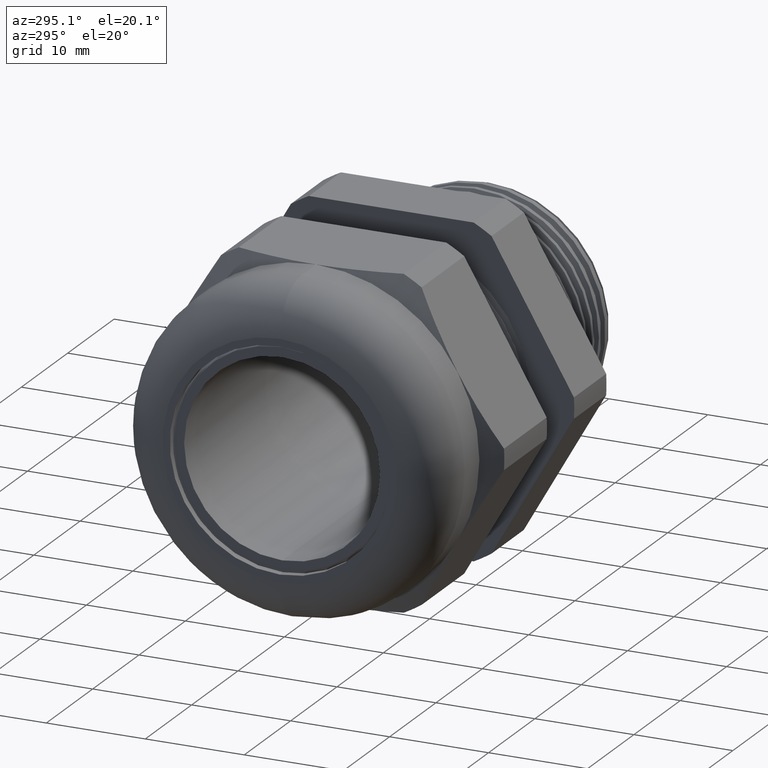
[diagram: clean part render]
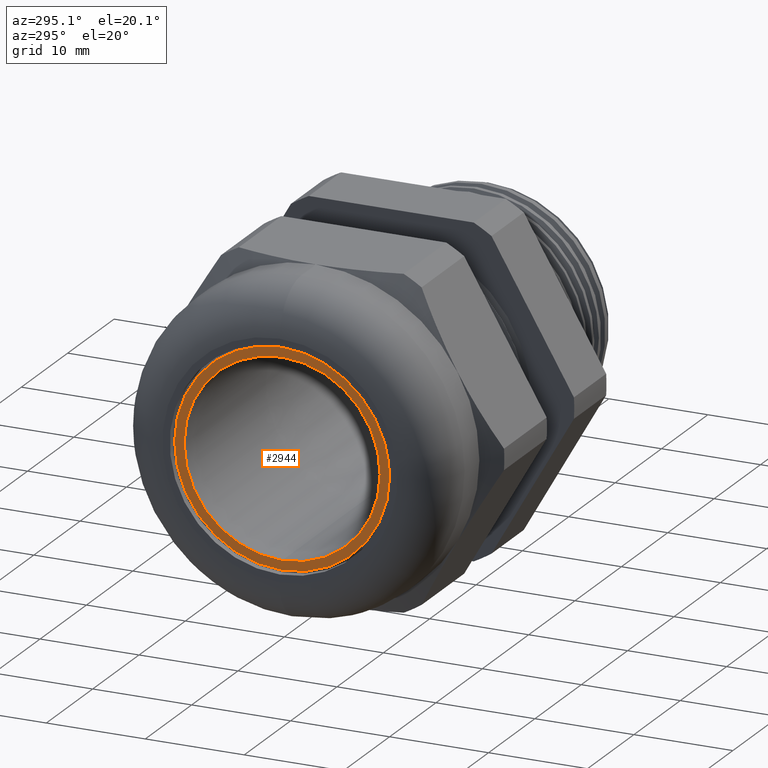
[diagram: same view with one face highlighted and labeled with its STEP entity id]
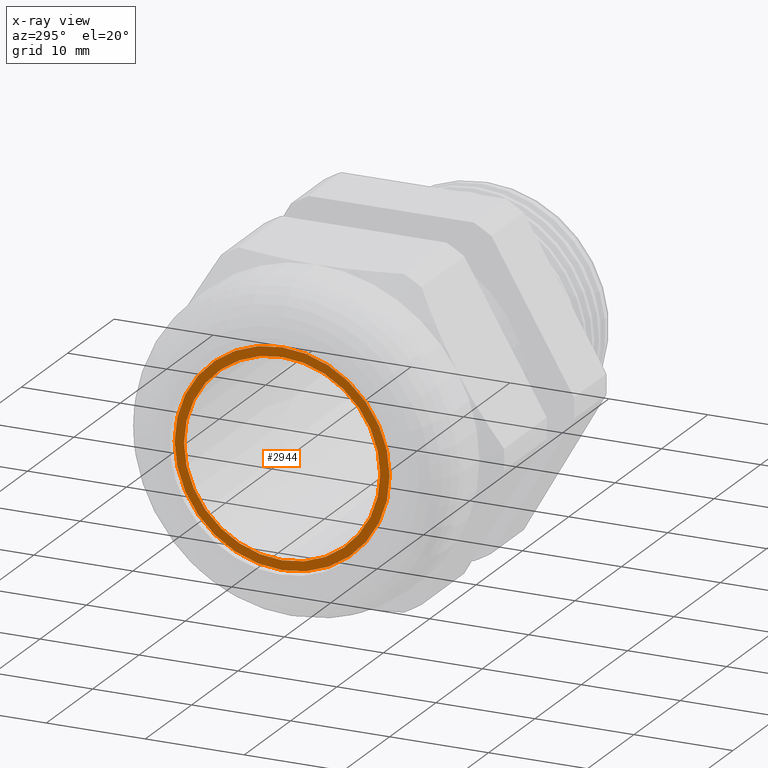
[diagram: x-ray of the same camera — body ghosted, the highlighted face saturated]
A machine part, auxiliary view. The second image highlights one B-rep face of the part: STEP entity #2944.
The next image is the same camera in x-ray: the body ghosted, the highlighted face saturated — about 0% of this face is hidden behind the body in this view.
In plain terms, the highlighted planar face has unit normal (-1, 0, 0).
Its self-contained STEP definition (entity closure, byte-faithful):
#395 = DIRECTION ( 'NONE',  ( 0.0000000000000000000, 0.0000000000000000000, 1.000000000000000000 ) ) ;
#1160 = DIRECTION ( 'NONE',  ( -1.000000000000000000, 0.0000000000000000000, 0.0000000000000000000 ) ) ;
#1161 = CARTESIAN_POINT ( 'NONE',  ( -1.200000000000000000, 0.4377499999999999200, 0.0000000000000000000 ) ) ;
#1162 = AXIS2_PLACEMENT_3D ( 'NONE', #1161, #1160, #395 ) ;
#1163 = PLANE ( 'NONE',  #1162 ) ;
#1164 = FACE_BOUND ( 'NONE', #2938, .T. ) ;
#1165 = FACE_OUTER_BOUND ( 'NONE', #2942, .T. ) ;
#1166 = DIRECTION ( 'NONE',  ( 0.0000000000000000000, 0.0000000000000000000, -1.000000000000000000 ) ) ;
#1167 = DIRECTION ( 'NONE',  ( 1.000000000000000000, 0.0000000000000000000, 0.0000000000000000000 ) ) ;
#1168 = CARTESIAN_POINT ( 'NONE',  ( -1.200000000000000000, 0.0000000000000000000, 0.0000000000000000000 ) ) ;
#1169 = AXIS2_PLACEMENT_3D ( 'NONE', #1168, #1167, #1166 ) ;
#1174 = CIRCLE ( 'NONE', #1169, 0.3900000000000000100 ) ;
#1177 = DIRECTION ( 'NONE',  ( 0.0000000000000000000, 0.0000000000000000000, 1.000000000000000000 ) ) ;
#1178 = DIRECTION ( 'NONE',  ( -1.000000000000000000, 0.0000000000000000000, 0.0000000000000000000 ) ) ;
#1179 = CARTESIAN_POINT ( 'NONE',  ( -1.200000000000000000, 0.0000000000000000000, 0.0000000000000000000 ) ) ;
#1180 = AXIS2_PLACEMENT_3D ( 'NONE', #1179, #1178, #1177 ) ;
#1185 = CIRCLE ( 'NONE', #1180, 0.4277499999999999600 ) ;
#1193 = DIRECTION ( 'NONE',  ( 0.0000000000000000000, 0.0000000000000000000, -1.000000000000000000 ) ) ;
#1194 = DIRECTION ( 'NONE',  ( 1.000000000000000000, 0.0000000000000000000, 0.0000000000000000000 ) ) ;
#1195 = CARTESIAN_POINT ( 'NONE',  ( -1.200000000000000000, 0.0000000000000000000, 0.0000000000000000000 ) ) ;
#1196 = AXIS2_PLACEMENT_3D ( 'NONE', #1195, #1194, #1193 ) ;
#1197 = CIRCLE ( 'NONE', #1196, 0.3900000000000000100 ) ;
#1254 = CARTESIAN_POINT ( 'NONE',  ( -1.200000000000000000, 0.0000000000000000000, -0.3900000000000000100 ) ) ;
#1255 = CARTESIAN_POINT ( 'NONE',  ( -1.200000000000000000, 4.776122516674677400E-017, 0.3900000000000000100 ) ) ;
#1298 = CARTESIAN_POINT ( 'NONE',  ( -1.200000000000000000, 0.0000000000000000000, 0.4277499999999999600 ) ) ;
#1299 = DIRECTION ( 'NONE',  ( 0.0000000000000000000, 0.0000000000000000000, 1.000000000000000000 ) ) ;
#1300 = DIRECTION ( 'NONE',  ( -1.000000000000000000, 0.0000000000000000000, 0.0000000000000000000 ) ) ;
#1301 = CARTESIAN_POINT ( 'NONE',  ( -1.200000000000000000, 0.0000000000000000000, 0.0000000000000000000 ) ) ;
#1302 = AXIS2_PLACEMENT_3D ( 'NONE', #1301, #1300, #1299 ) ;
#1303 = CIRCLE ( 'NONE', #1302, 0.4277499999999999600 ) ;
#1374 = CARTESIAN_POINT ( 'NONE',  ( -1.200000000000000000, 5.299659023310170100E-017, -0.4277499999999999600 ) ) ;
#2935 = ORIENTED_EDGE ( 'NONE', *, *, #2936, .T. ) ;
#2936 = EDGE_CURVE ( 'NONE', #3038, #3014, #1185, .T. ) ;
#2938 = EDGE_LOOP ( 'NONE', ( #2943, #2940 ) ) ;
#2939 = EDGE_CURVE ( 'NONE', #2967, #2966, #1174, .T. ) ;
#2940 = ORIENTED_EDGE ( 'NONE', *, *, #2965, .T. ) ;
#2942 = EDGE_LOOP ( 'NONE', ( #2945, #2935 ) ) ;
#2943 = ORIENTED_EDGE ( 'NONE', *, *, #2939, .T. ) ;
#2944 = ADVANCED_FACE ( 'NONE', ( #1165, #1164 ), #1163, .T. ) ;
#2945 = ORIENTED_EDGE ( 'NONE', *, *, #3013, .T. ) ;
#2965 = EDGE_CURVE ( 'NONE', #2966, #2967, #1197, .T. ) ;
#2966 = VERTEX_POINT ( 'NONE', #1255 ) ;
#2967 = VERTEX_POINT ( 'NONE', #1254 ) ;
#3013 = EDGE_CURVE ( 'NONE', #3014, #3038, #1303, .T. ) ;
#3014 = VERTEX_POINT ( 'NONE', #1298 ) ;
#3038 = VERTEX_POINT ( 'NONE', #1374 ) ;